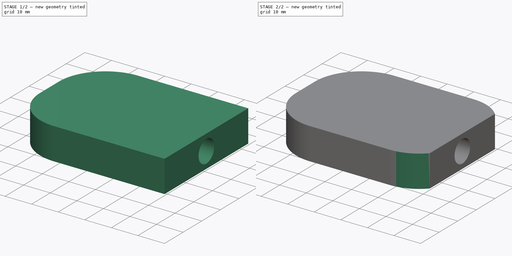
[diagram: build sequence overview — one tinted view per stage of 2, left to right]
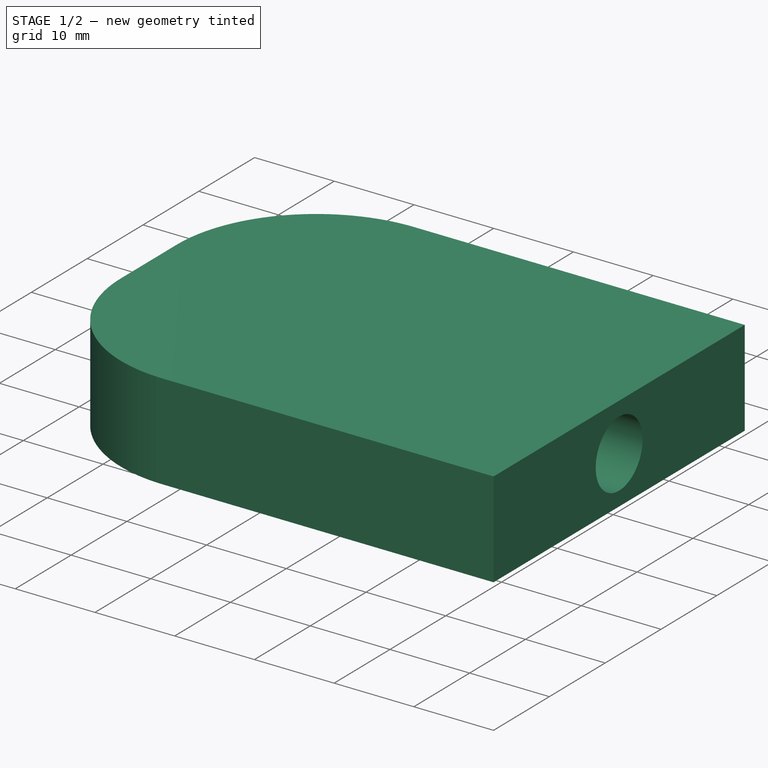
[diagram: stage 1 of 2 — iso view after this stage's code; geometry added in this stage tinted green]
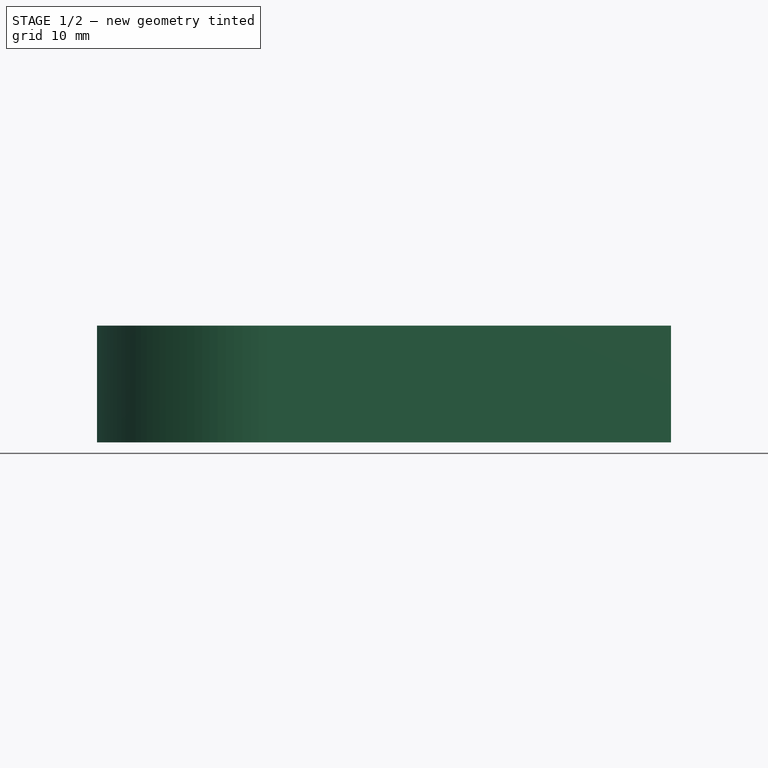
[diagram: stage 1 of 2 — front view after this stage's code; geometry added in this stage tinted green]
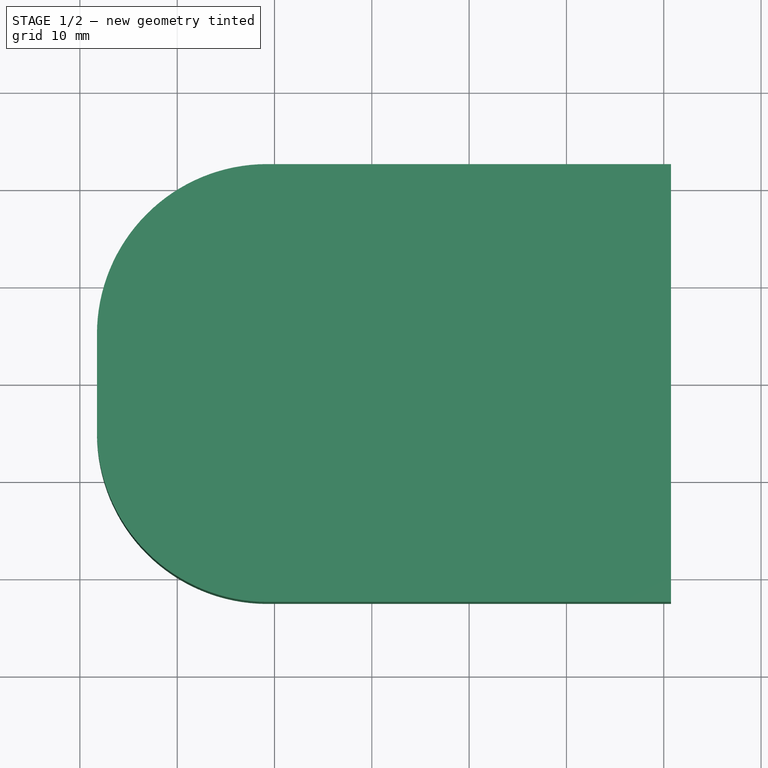
[diagram: stage 1 of 2 — top view after this stage's code; geometry added in this stage tinted green]
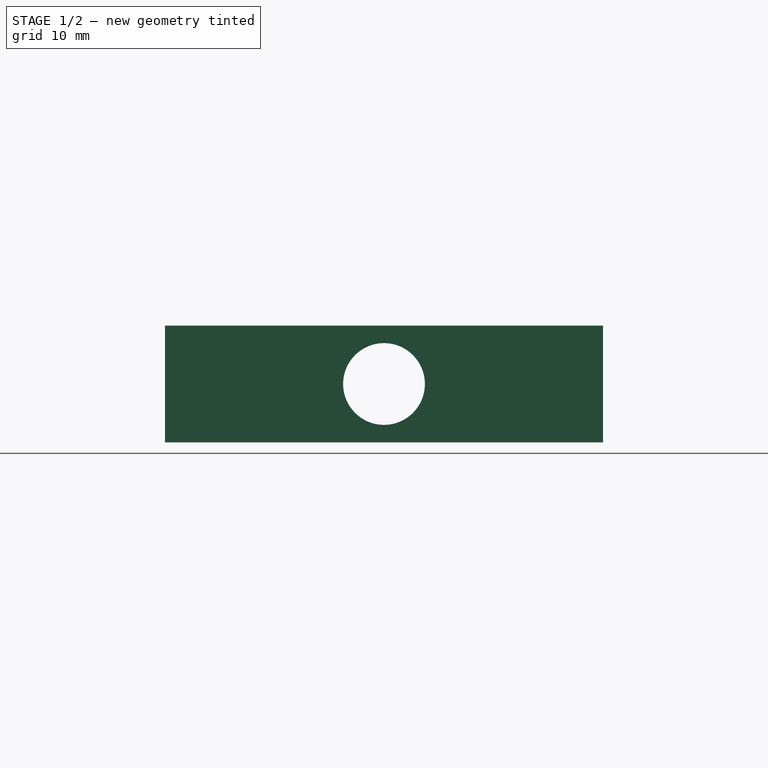
[diagram: stage 1 of 2 — right view after this stage's code; geometry added in this stage tinted green]
FCSTD DOCUMENT  (FreeCAD 0.16R)
Label: 60mmPed4
License: All rights reserved
LicenseURL: http://en.wikipedia.org/wiki/All_rights_reserved
objects: Sketcher::SketchObject×2, PartDesign::Pad×1, PartDesign::Pocket×1, PartDesign::Chamfer×1, PartDesign::Fillet×1
note: 8 computed .brp shape members not serialized (recipe doc carries the construction recipe); baked Part::Feature solids carry a one-line shape summary decoded from their .brp

FEATURE [Sketcher::SketchObject] Sketch
  sketch-geometry (6):
    g0: LineSegment StartX=20.75 StartY=-22.5 StartZ=0 EndX=20.75 EndY=22.5 EndZ=0
    g1: LineSegment StartX=20.75 StartY=22.5 StartZ=0 EndX=-20.75 EndY=22.5 EndZ=0
    g2: LineSegment StartX=20.75 StartY=-22.5 StartZ=0 EndX=-20.75 EndY=-22.5 EndZ=0
    g3: LineSegment StartX=-38.25 StartY=5 StartZ=0 EndX=-38.25 EndY=-5 EndZ=0
    g4: ArcOfCircle CenterX=-20.75 CenterY=5 CenterZ=0 NormalX=0 NormalY=0 NormalZ=1 Radius=17.5 StartAngle=1.5708 EndAngle=3.14159
    g5: ArcOfCircle CenterX=-20.75 CenterY=-5 CenterZ=0 NormalX=0 NormalY=0 NormalZ=1 Radius=17.5 StartAngle=3.14159 EndAngle=4.71239
  constraints (14):
    c: Horizontal(g2)
    c: Equal(g2,g1)
    c: Tangent(g3,g4) = -1.5708
    c: Tangent(g1,g4) = -1.5708
    c: Tangent(g3,g5) = -1.5708
    c: Tangent(g2,g5) = 1.5708
    c: Symmetric(g3,g3,g-1)
    c: Symmetric(g0,g0,g-1)
    c: Symmetric(g1,g1,g-2)
    c: Distance(g0,g3) = 59
    c: Distance(g1,g2) = 45
    c: Distance(g3) = 10
    c: Coincident(g0,g1)
    c: Coincident(g2,g0)
FEATURE [PartDesign::Pad] Pad
  Length = 12
  Length2 = 100
  Midplane = true
  Sketch = -> Sketch
  Type = 0
FEATURE [Sketcher::SketchObject] Sketch002
  Placement = pos=(20.75,-2e-12,0) rot=(0.57735,0.57735,0.57735;2.0944rad)
  Support = -> Pad [Face1]
  sketch-geometry (1):
    g0: Circle CenterX=0 CenterY=0 CenterZ=0 NormalX=0 NormalY=0 NormalZ=1 Radius=4.2
  constraints (2):
    c: Radius(g0) = 4.2
    c: Coincident(g0,g-1)
FEATURE [PartDesign::Pocket] Pocket
  Length = 5
  Sketch = -> Sketch002
  Type = 1
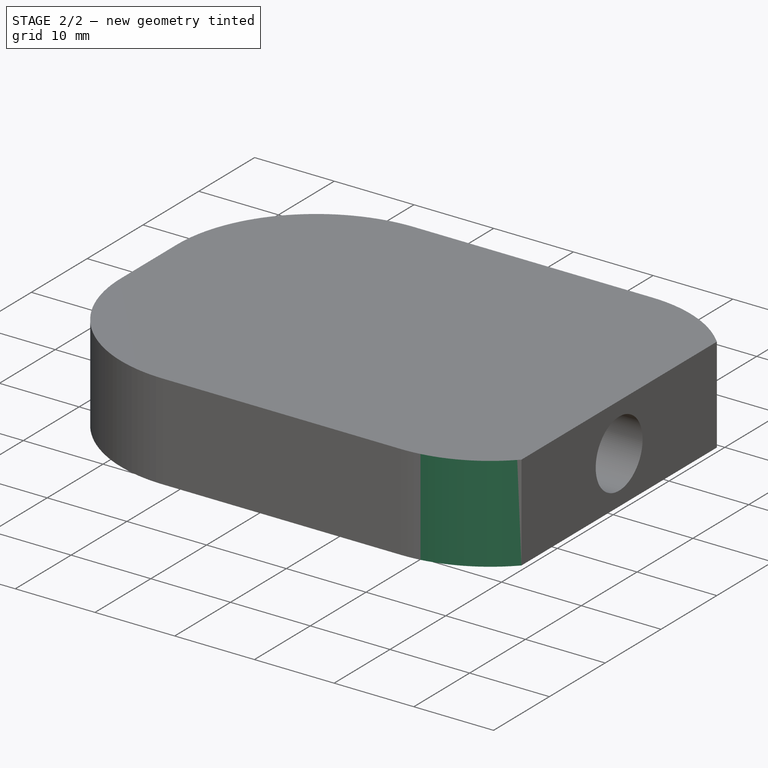
[diagram: stage 2 of 2 — iso view after this stage's code; geometry added in this stage tinted green]
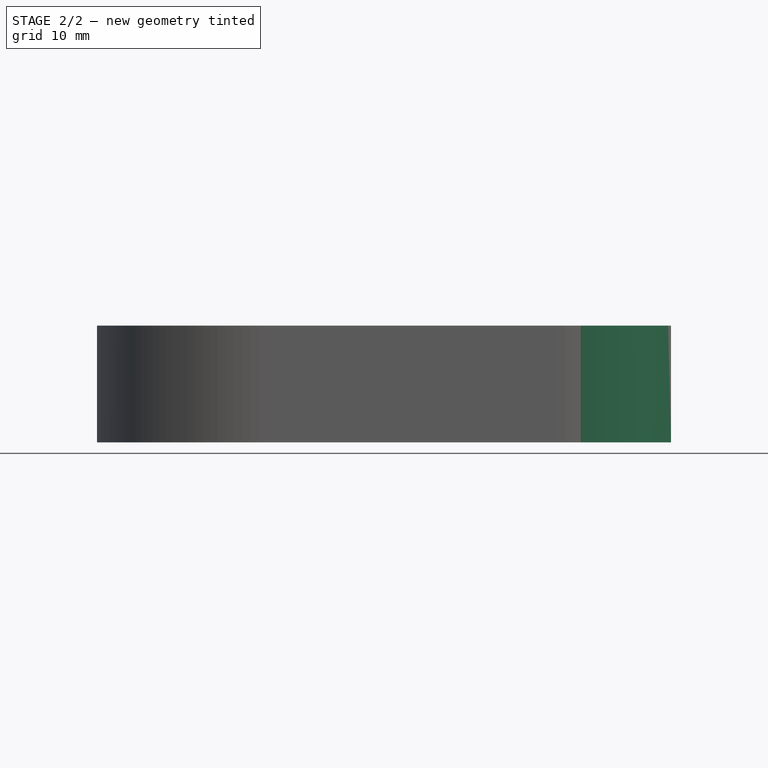
[diagram: stage 2 of 2 — front view after this stage's code; geometry added in this stage tinted green]
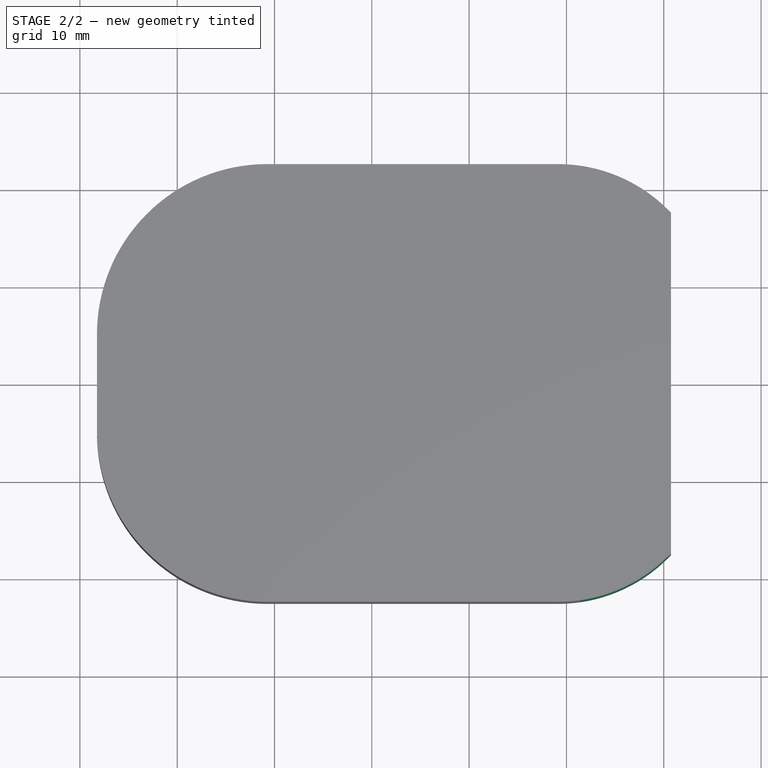
[diagram: stage 2 of 2 — top view after this stage's code; geometry added in this stage tinted green]
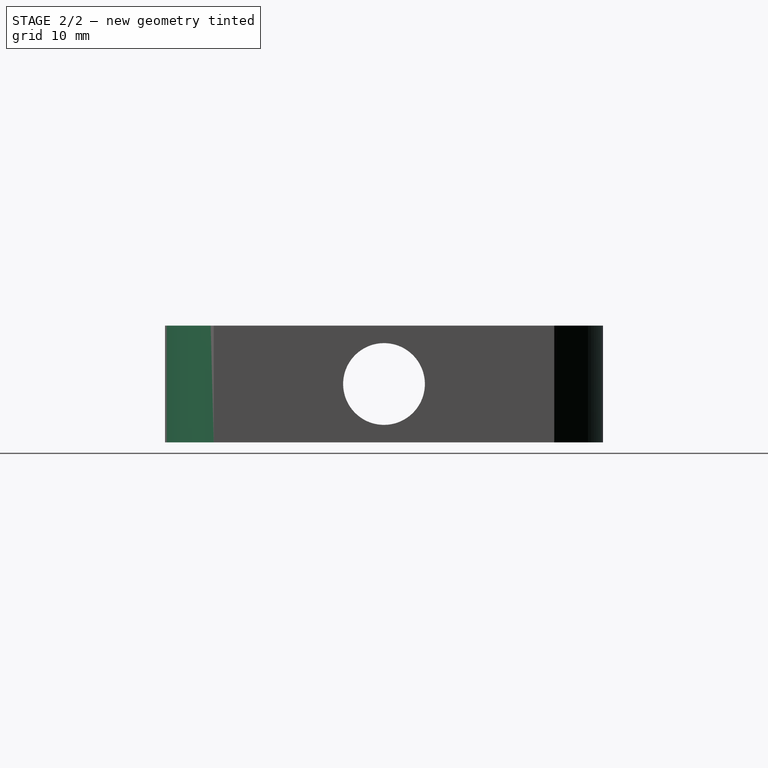
[diagram: stage 2 of 2 — right view after this stage's code; geometry added in this stage tinted green]
FEATURE [PartDesign::Chamfer] Chamfer
  Base = -> Pocket [Edge4,Edge1]
  Size = 5
FEATURE [PartDesign::Fillet] Fillet
  Base = -> Chamfer [Edge15,Edge13]
  Radius = 16
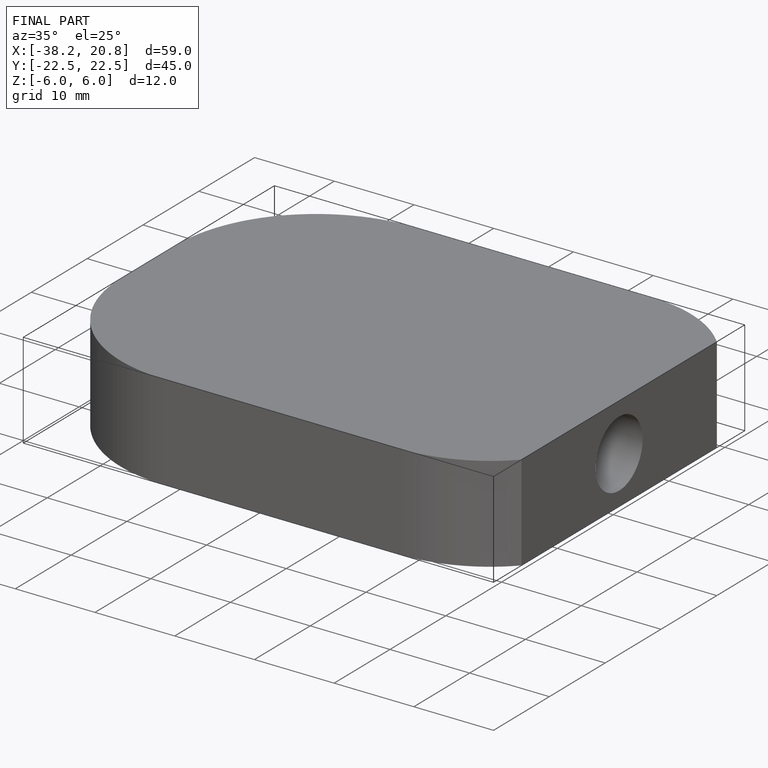
[diagram: finished part — iso view with bounding-box wireframe]
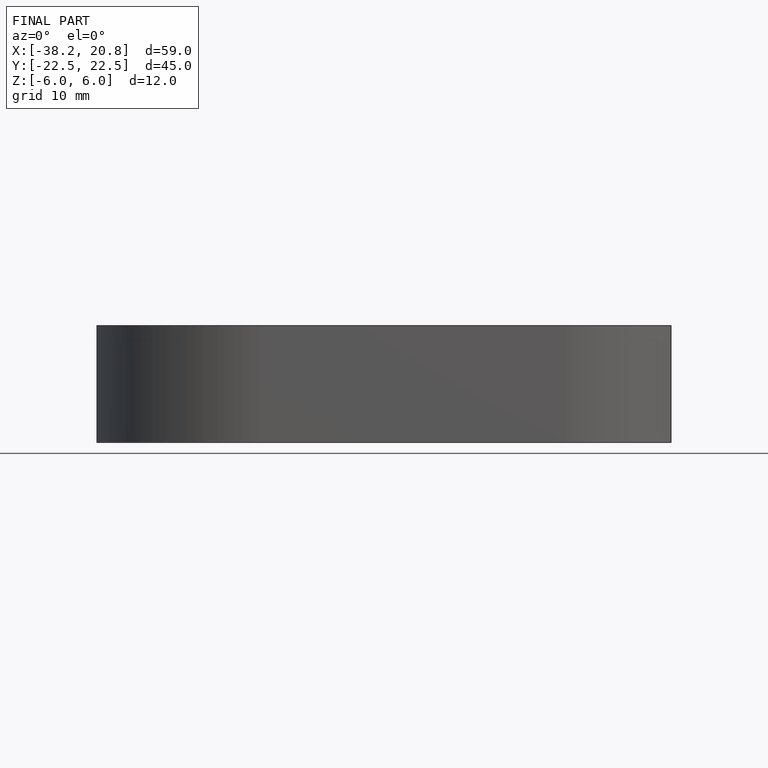
[diagram: finished part — front view with bounding-box wireframe]
